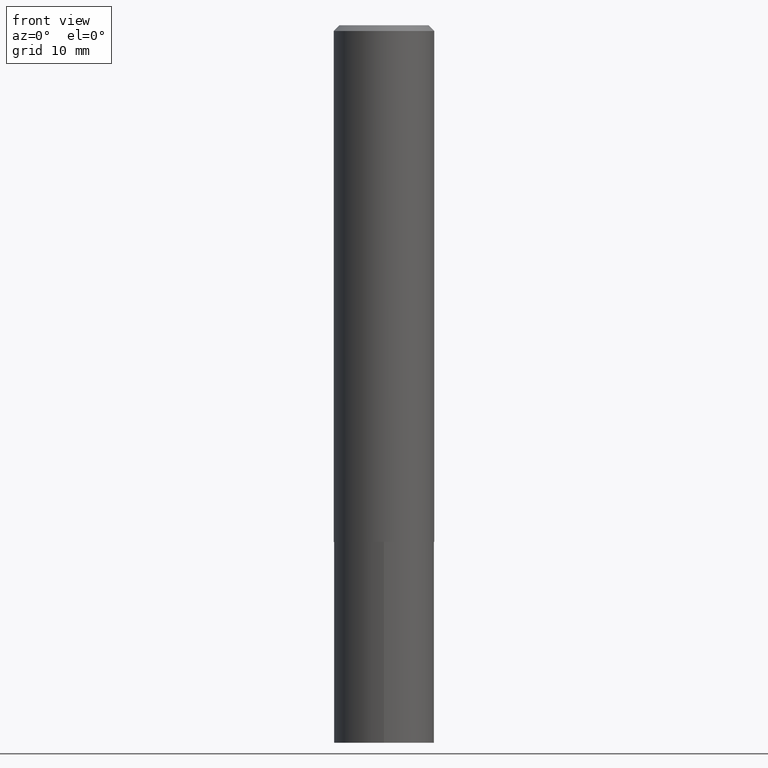
[diagram: clean part render]
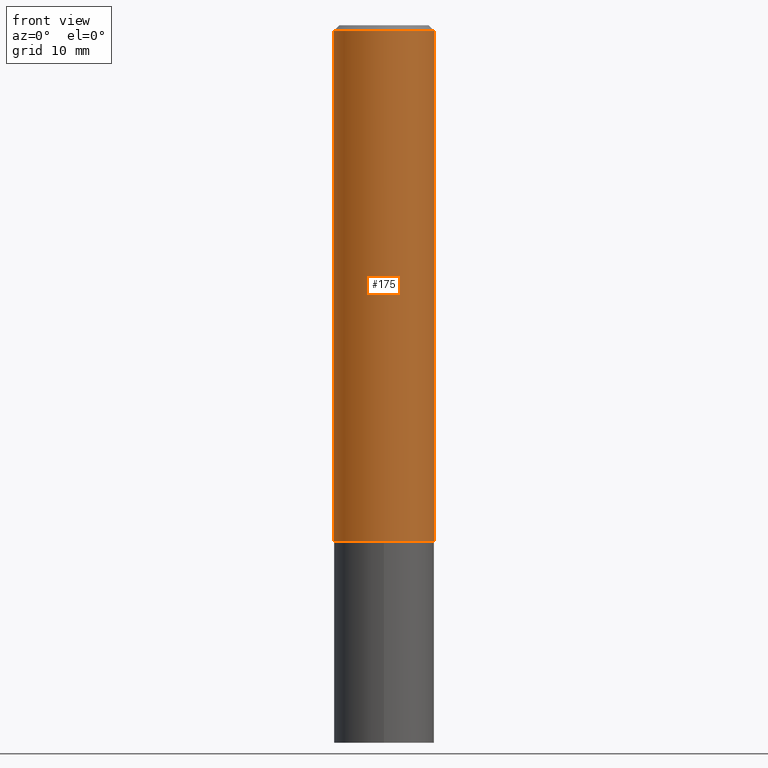
[diagram: same view with one face highlighted and labeled with its STEP entity id]
A machine part, front view. The second image highlights one B-rep face of the part: STEP entity #175.
In plain terms, the highlighted cylindrical surface (partial cylindrical patch) has radius 7.0002 mm, axis along (-0, 0, 1).
Its self-contained STEP definition (entity closure, byte-faithful):
#7 = EDGE_CURVE ( 'NONE', #54, #135, #75, .T. ) ;
#18 = DIRECTION ( 'NONE',  ( 1.000000000000000000, -6.982962677686264344E-15, 0.000000000000000000 ) ) ;
#25 = CARTESIAN_POINT ( 'NONE',  ( 0.2756000000000001782, -1.924504513970336532E-15, 1.343874319409360828E-29 ) ) ;
#27 = EDGE_CURVE ( 'NONE', #325, #135, #144, .T. ) ;
#28 = DIRECTION ( 'NONE',  ( -2.445468806185136877E-29, 3.491481338843145188E-15, 1.000000000000000000 ) ) ;
#36 = FACE_OUTER_BOUND ( 'NONE', #143, .T. ) ;
#39 = CARTESIAN_POINT ( 'NONE',  ( 0.000000000000000000, 0.000000000000000000, 0.000000000000000000 ) ) ;
#54 = VERTEX_POINT ( 'NONE', #345 ) ;
#75 = CIRCLE ( 'NONE', #103, 0.2756000000000000116 ) ;
#80 = ORIENTED_EDGE ( 'NONE', *, *, #320, .T. ) ;
#90 = VECTOR ( 'NONE', #321, 39.37007874015748143 ) ;
#103 = AXIS2_PLACEMENT_3D ( 'NONE', #275, #332, #200 ) ;
#125 = ORIENTED_EDGE ( 'NONE', *, *, #27, .T. ) ;
#128 = CARTESIAN_POINT ( 'NONE',  ( 0.2756000000000003447, -1.182110836892123233E-14, -2.834499999999999353 ) ) ;
#129 = CARTESIAN_POINT ( 'NONE',  ( 6.931681331131768733E-29, -9.896603854950894217E-15, -2.834499999999999353 ) ) ;
#135 = VERTEX_POINT ( 'NONE', #209 ) ;
#143 = EDGE_LOOP ( 'NONE', ( #250, #80, #125, #358 ) ) ;
#144 = LINE ( 'NONE', #25, #282 ) ;
#148 = AXIS2_PLACEMENT_3D ( 'NONE', #129, #182, #18 ) ;
#152 = CYLINDRICAL_SURFACE ( 'NONE', #253, 0.2756000000000001782 ) ;
#175 = ADVANCED_FACE ( 'NONE', ( #36 ), #152, .T. ) ;
#182 = DIRECTION ( 'NONE',  ( -2.445468806185136597E-29, 3.491481338843145583E-15, 1.000000000000000000 ) ) ;
#183 = VERTEX_POINT ( 'NONE', #288 ) ;
#200 = DIRECTION ( 'NONE',  ( 1.000000000000000000, -6.982962677686267499E-15, 0.000000000000000000 ) ) ;
#209 = CARTESIAN_POINT ( 'NONE',  ( 0.2756000000000000116, -2.033613305809184449E-15, -0.03125000000000022204 ) ) ;
#214 = CARTESIAN_POINT ( 'NONE',  ( -0.2756000000000001782, 1.958255779754837378E-15, -1.355658510874252848E-29 ) ) ;
#233 = DIRECTION ( 'NONE',  ( -2.445468806185136597E-29, 3.491481338843145583E-15, 1.000000000000000000 ) ) ;
#235 = LINE ( 'NONE', #214, #90 ) ;
#250 = ORIENTED_EDGE ( 'NONE', *, *, #331, .F. ) ;
#253 = AXIS2_PLACEMENT_3D ( 'NONE', #39, #233, #290 ) ;
#275 = CARTESIAN_POINT ( 'NONE',  ( 7.642090019328606165E-31, -1.091087918388490760E-16, -0.03125000000000022204 ) ) ;
#282 = VECTOR ( 'NONE', #28, 39.37007874015748143 ) ;
#288 = CARTESIAN_POINT ( 'NONE',  ( -0.2756000000000003447, -7.938348075196056050E-15, -2.834499999999999353 ) ) ;
#290 = DIRECTION ( 'NONE',  ( 1.000000000000000000, -6.982962677686267499E-15, 4.876176775795935793E-29 ) ) ;
#320 = EDGE_CURVE ( 'NONE', #183, #325, #344, .T. ) ;
#321 = DIRECTION ( 'NONE',  ( -2.445468806185136877E-29, 3.491481338843145188E-15, 1.000000000000000000 ) ) ;
#325 = VERTEX_POINT ( 'NONE', #128 ) ;
#331 = EDGE_CURVE ( 'NONE', #183, #54, #235, .T. ) ;
#332 = DIRECTION ( 'NONE',  ( -2.445468806185136597E-29, 3.491481338843145583E-15, 1.000000000000000000 ) ) ;
#344 = CIRCLE ( 'NONE', #148, 0.2756000000000003447 ) ;
#345 = CARTESIAN_POINT ( 'NONE',  ( -0.2756000000000000116, -3.044600543640032703E-15, -0.03125000000000022204 ) ) ;
#358 = ORIENTED_EDGE ( 'NONE', *, *, #7, .F. ) ;